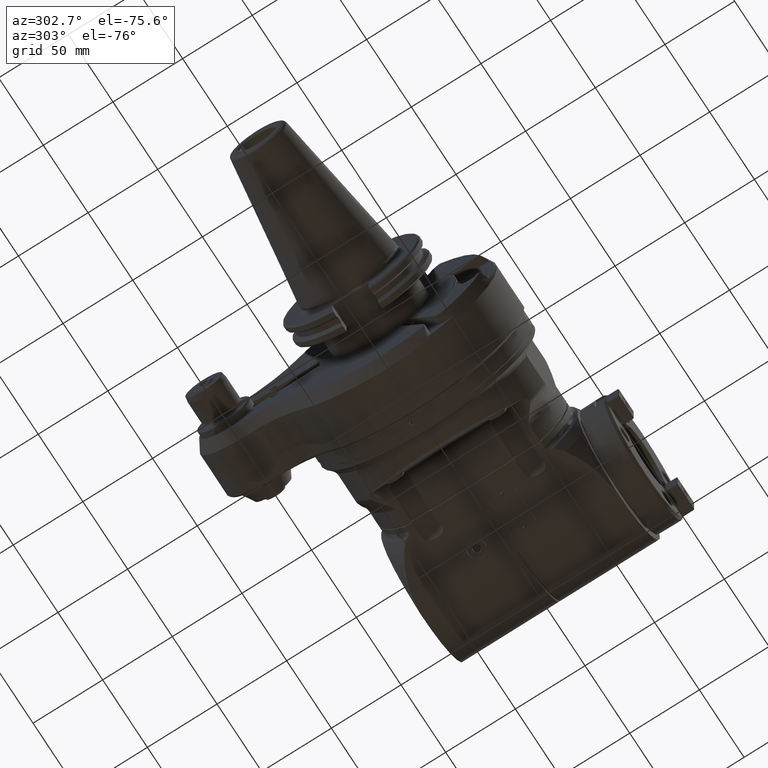
[diagram: clean part render]
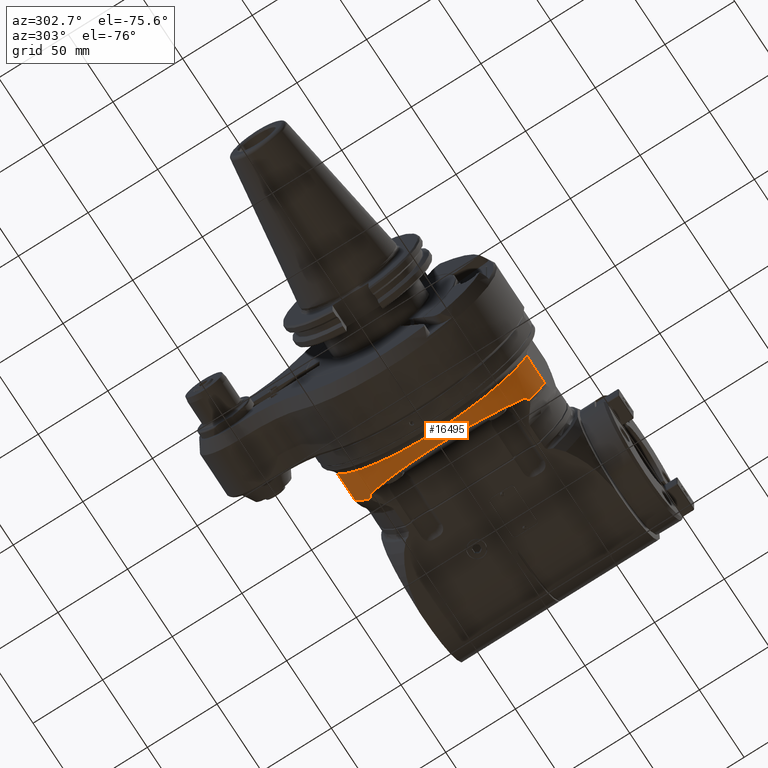
[diagram: same view with one face highlighted and labeled with its STEP entity id]
A machine part, auxiliary view. The second image highlights one B-rep face of the part: STEP entity #16495.
In plain terms, the highlighted cylindrical surface (partial cylindrical patch) has radius 74 mm, axis along (1, 0, 0).
Its self-contained STEP definition (entity closure, byte-faithful):
#43=ELLIPSE('',#18076,78.7491551632184,74.);
#750=B_SPLINE_CURVE_WITH_KNOTS('',3,(#40018,#40019,#40020,#40021,#40022,
#40023,#40024,#40025),.UNSPECIFIED.,.F.,.F.,(4,2,2,4),(-8.97473766116249,
-8.92847385363976,-8.88221004611703,-8.8541838956784),.UNSPECIFIED.);
#772=B_SPLINE_CURVE_WITH_KNOTS('',3,(#40390,#40391,#40392,#40393,#40394,
#40395,#40396,#40397,#40398,#40399),.UNSPECIFIED.,.F.,.F.,(4,2,2,2,4),(-1.3951785206262,
-1.30734777719661,-1.15922986829573,-0.950940355376749,-0.92440659430022),
 .UNSPECIFIED.);
#773=B_SPLINE_CURVE_WITH_KNOTS('',3,(#40405,#40406,#40407,#40408,#40409,
#40410),.UNSPECIFIED.,.F.,.F.,(4,2,4),(5.82399857270311,5.88327052843539,
5.94927367881169),.UNSPECIFIED.);
#774=B_SPLINE_CURVE_WITH_KNOTS('',3,(#40414,#40415,#40416,#40417,#40418,
#40419,#40420,#40421,#40422,#40423),.UNSPECIFIED.,.F.,.F.,(4,2,2,2,4),(0.92440659430022,
0.950940355376749,1.15922986829573,1.30734777719661,1.39517852399918),
 .UNSPECIFIED.);
#1725=FACE_OUTER_BOUND('',#2655,.T.);
#2655=EDGE_LOOP('',(#12989,#12990,#12991,#12992,#12993,#12994,#12995,#12996,
#12997,#12998));
#3665=LINE('',#40015,#4888);
#3701=LINE('',#40403,#4924);
#4888=VECTOR('',#21336,18.59147469257);
#4924=VECTOR('',#21486,18.59147469257);
#6048=CIRCLE('',#18098,74.);
#6049=CIRCLE('',#18099,74.);
#6050=CIRCLE('',#18100,74.);
#7142=VERTEX_POINT('',#39953);
#7147=VERTEX_POINT('',#40004);
#7148=VERTEX_POINT('',#40017);
#7182=VERTEX_POINT('',#40252);
#7183=VERTEX_POINT('',#40254);
#7209=VERTEX_POINT('',#40383);
#7210=VERTEX_POINT('',#40401);
#7211=VERTEX_POINT('',#40402);
#7212=VERTEX_POINT('',#40404);
#7213=VERTEX_POINT('',#40412);
#9214=EDGE_CURVE('',#7142,#7147,#3665,.T.);
#9215=EDGE_CURVE('',#7142,#7148,#750,.T.);
#9269=EDGE_CURVE('',#7182,#7183,#43,.T.);
#9307=EDGE_CURVE('',#7209,#7182,#772,.T.);
#9308=EDGE_CURVE('',#7210,#7211,#3701,.T.);
#9309=EDGE_CURVE('',#7212,#7211,#773,.T.);
#9310=EDGE_CURVE('',#7148,#7212,#6048,.T.);
#9311=EDGE_CURVE('',#7213,#7147,#6049,.T.);
#9312=EDGE_CURVE('',#7183,#7213,#774,.T.);
#9313=EDGE_CURVE('',#7210,#7209,#6050,.T.);
#12989=ORIENTED_EDGE('',*,*,#9308,.T.);
#12990=ORIENTED_EDGE('',*,*,#9309,.F.);
#12991=ORIENTED_EDGE('',*,*,#9310,.F.);
#12992=ORIENTED_EDGE('',*,*,#9215,.F.);
#12993=ORIENTED_EDGE('',*,*,#9214,.T.);
#12994=ORIENTED_EDGE('',*,*,#9311,.F.);
#12995=ORIENTED_EDGE('',*,*,#9312,.F.);
#12996=ORIENTED_EDGE('',*,*,#9269,.F.);
#12997=ORIENTED_EDGE('',*,*,#9307,.F.);
#12998=ORIENTED_EDGE('',*,*,#9313,.F.);
#15036=CYLINDRICAL_SURFACE('',#18097,74.);
#16495=ADVANCED_FACE('',(#1725),#15036,.T.);
#18076=AXIS2_PLACEMENT_3D('',#40255,#21425,#21426);
#18097=AXIS2_PLACEMENT_3D('',#40400,#21484,#21485);
#18098=AXIS2_PLACEMENT_3D('',#40411,#21487,#21488);
#18099=AXIS2_PLACEMENT_3D('',#40413,#21489,#21490);
#18100=AXIS2_PLACEMENT_3D('',#40424,#21491,#21492);
#21336=DIRECTION('',(1.,0.,0.));
#21425=DIRECTION('center_axis',(0.939692620785897,0.,-0.342020143325699));
#21426=DIRECTION('ref_axis',(0.342020143325699,-1.12785771207228E-16,0.939692620785897));
#21484=DIRECTION('center_axis',(1.,0.,0.));
#21485=DIRECTION('ref_axis',(0.,0.,-1.));
#21486=DIRECTION('',(-1.,0.,0.));
#21487=DIRECTION('center_axis',(-1.,0.,0.));
#21488=DIRECTION('ref_axis',(0.,0.528115842389186,-0.849172336465078));
#21489=DIRECTION('center_axis',(1.,0.,0.));
#21490=DIRECTION('ref_axis',(0.,0.766268020526802,-0.642521066361202));
#21491=DIRECTION('center_axis',(1.,0.,0.));
#21492=DIRECTION('ref_axis',(0.,-0.918918918918919,-0.394446473495308));
#39953=CARTESIAN_POINT('',(-3.199169847156,68.,-29.18903903865));
#40004=CARTESIAN_POINT('',(15.39230484541,68.,-29.18903903865));
#40015=CARTESIAN_POINT('',(-3.199169847156,68.,-29.18903903865));
#40017=CARTESIAN_POINT('',(-4.343145750507,68.16707433772,-28.79670078734));
#40018=CARTESIAN_POINT('Ctrl Pts',(-3.199169847161,68.0000000000003,-29.1890390386521));
#40019=CARTESIAN_POINT('Ctrl Pts',(-3.35338253890279,68.0000000000001,-29.1890390386526));
#40020=CARTESIAN_POINT('Ctrl Pts',(-3.50873002634391,68.0090859585314,-29.1678970355995));
#40021=CARTESIAN_POINT('Ctrl Pts',(-3.81147760353553,68.0442065780357,-29.0858718549993));
#40022=CARTESIAN_POINT('Ctrl Pts',(-3.9589027533416,68.0702020466671,-29.0250644150093));
#40023=CARTESIAN_POINT('Ctrl Pts',(-4.18296004485383,68.1218971883241,-28.903453239249));
#40024=CARTESIAN_POINT('Ctrl Pts',(-4.26472449291117,68.1436687105561,-28.852106201268));
#40025=CARTESIAN_POINT('Ctrl Pts',(-4.34314575050775,68.1670743377207,-28.7967007873413));
#40252=CARTESIAN_POINT('',(12.24206008372,-54.43152261875,-50.1319194267));
#40254=CARTESIAN_POINT('',(12.24206008372,54.43152261875,-50.1319194267));
#40255=CARTESIAN_POINT('Origin',(30.4885865416663,0.,0.));
#40383=CARTESIAN_POINT('',(15.3923048125211,-56.7038335107798,-47.5465589205125));
#40390=CARTESIAN_POINT('Ctrl Pts',(15.3923048113315,-56.7038335145847,-47.5465589159748));
#40391=CARTESIAN_POINT('Ctrl Pts',(15.0966365176392,-56.6656729212564,-47.5920690849595));
#40392=CARTESIAN_POINT('Ctrl Pts',(14.8046128873128,-56.5988263780084,-47.6717203786077));
#40393=CARTESIAN_POINT('Ctrl Pts',(14.0691232505964,-56.3530836493524,-47.962350324512));
#40394=CARTESIAN_POINT('Ctrl Pts',(13.6597016419349,-56.1261262009457,-48.2286199313907));
#40395=CARTESIAN_POINT('Ctrl Pts',(12.891424908051,-55.5320548889032,-48.9128954006325));
#40396=CARTESIAN_POINT('Ctrl Pts',(12.5439192001421,-55.0930592941075,-49.4090621932634));
#40397=CARTESIAN_POINT('Ctrl Pts',(12.2929239357564,-54.5548337505144,-49.9977823349801));
#40398=CARTESIAN_POINT('Ctrl Pts',(12.2665186874685,-54.4934139241589,-50.064719965177));
#40399=CARTESIAN_POINT('Ctrl Pts',(12.2420600837167,-54.4315226187475,-50.1319194266965));
#40400=CARTESIAN_POINT('Origin',(41.,0.,0.));
#40401=CARTESIAN_POINT('',(15.39230484541,-68.,-29.18903903865));
#40402=CARTESIAN_POINT('',(-3.199169847162,-68.,-29.18903903865));
#40403=CARTESIAN_POINT('',(15.39230484541,-68.,-29.18903903865));
#40404=CARTESIAN_POINT('',(-4.343145750508,-68.16707433772,-28.79670078734));
#40405=CARTESIAN_POINT('Ctrl Pts',(-4.3431457505092,-68.1670743377204,-28.7967007873419));
#40406=CARTESIAN_POINT('Ctrl Pts',(-4.1830012486624,-68.1192775716706,-28.9098445022585));
#40407=CARTESIAN_POINT('Ctrl Pts',(-4.01188734524031,-68.0791803320279,
-29.0039747753425));
#40408=CARTESIAN_POINT('Ctrl Pts',(-3.63105121116806,-68.018200178978,-29.146718243036));
#40409=CARTESIAN_POINT('Ctrl Pts',(-3.41918034841552,-67.9999999999997,
-29.1890390386537));
#40410=CARTESIAN_POINT('Ctrl Pts',(-3.199169847161,-67.9999999999997,-29.1890390386537));
#40411=CARTESIAN_POINT('Origin',(-4.343145750508,0.,0.));
#40412=CARTESIAN_POINT('',(15.39230484541,56.70383351898,-47.54655891073));
#40413=CARTESIAN_POINT('Origin',(15.39230484541,0.,0.));
#40414=CARTESIAN_POINT('Ctrl Pts',(12.2420600837167,54.4315226187475,-50.1319194266965));
#40415=CARTESIAN_POINT('Ctrl Pts',(12.2665186874685,54.4934139241589,-50.064719965177));
#40416=CARTESIAN_POINT('Ctrl Pts',(12.2929239357564,54.5548337505144,-49.9977823349801));
#40417=CARTESIAN_POINT('Ctrl Pts',(12.5439192001421,55.0930592941075,-49.4090621932634));
#40418=CARTESIAN_POINT('Ctrl Pts',(12.891424908051,55.5320548889032,-48.9128954006325));
#40419=CARTESIAN_POINT('Ctrl Pts',(13.6597016419349,56.1261262009457,-48.2286199313907));
#40420=CARTESIAN_POINT('Ctrl Pts',(14.0691232505964,56.3530836493524,-47.962350324512));
#40421=CARTESIAN_POINT('Ctrl Pts',(14.8046128978269,56.5988263815214,-47.6717203744531));
#40422=CARTESIAN_POINT('Ctrl Pts',(15.0966365401009,56.6656729263503,-47.5920690788931));
#40423=CARTESIAN_POINT('Ctrl Pts',(15.3923048454095,56.703833518983,-47.5465589107294));
#40424=CARTESIAN_POINT('Origin',(15.39230484541,0.,0.));